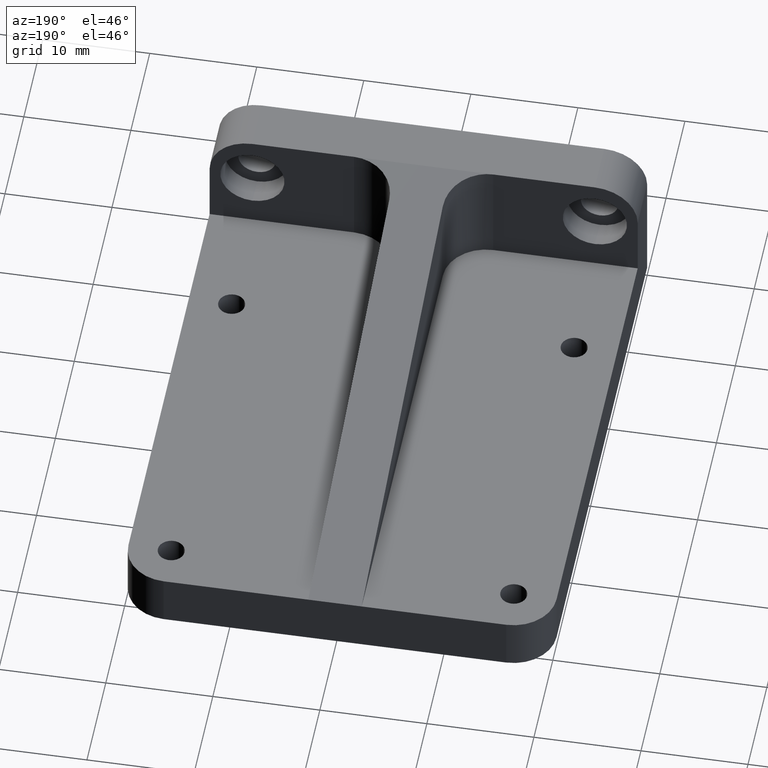
[diagram: clean part render]
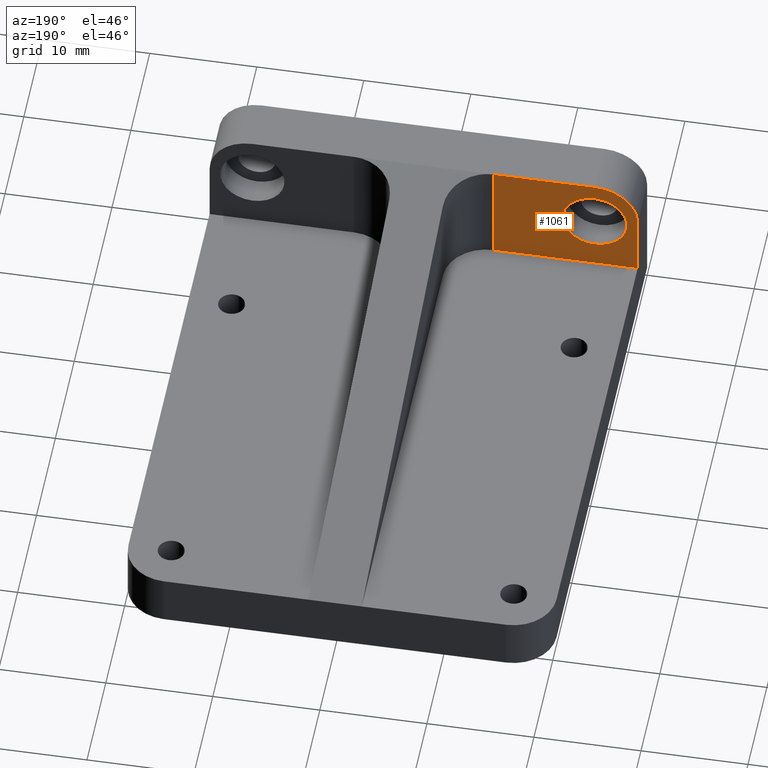
[diagram: same view with one face highlighted and labeled with its STEP entity id]
A machine part, auxiliary view. The second image highlights one B-rep face of the part: STEP entity #1061.
In plain terms, the highlighted planar face has unit normal (0, -1, 0).
Its self-contained STEP definition (entity closure, byte-faithful):
#9 = CARTESIAN_POINT ( 'NONE',  ( -16.00000000000000000, 5.000000000000000000, 13.50000000000000000 ) ) ;
#90 = ORIENTED_EDGE ( 'NONE', *, *, #994, .T. ) ;
#150 = DIRECTION ( 'NONE',  ( 0.0000000000000000000, 0.0000000000000000000, 1.000000000000000000 ) ) ;
#153 = VECTOR ( 'NONE', #934, 1000.000000000000000 ) ;
#166 = CARTESIAN_POINT ( 'NONE',  ( -20.00000000000000000, 4.999999999999998224, -50.15226814412284995 ) ) ;
#192 = CIRCLE ( 'NONE', #425, 2.999999999999999112 ) ;
#221 = VECTOR ( 'NONE', #1230, 1000.000000000000000 ) ;
#222 = ORIENTED_EDGE ( 'NONE', *, *, #502, .T. ) ;
#262 = VECTOR ( 'NONE', #756, 1000.000000000000000 ) ;
#312 = CARTESIAN_POINT ( 'NONE',  ( -20.00000000000000000, 4.999999999999998224, 10.99999999999999645 ) ) ;
#338 = EDGE_CURVE ( 'NONE', #1134, #678, #1071, .T. ) ;
#344 = LINE ( 'NONE', #166, #698 ) ;
#346 = CARTESIAN_POINT ( 'NONE',  ( -16.00000000000000000, 5.000000000000000000, 10.50000000000000000 ) ) ;
#352 = CARTESIAN_POINT ( 'NONE',  ( -6.499999999999995559, 4.999999999999998224, 15.00000000000000000 ) ) ;
#353 = EDGE_CURVE ( 'NONE', #883, #894, #376, .T. ) ;
#356 = CIRCLE ( 'NONE', #619, 4.000000000000000000 ) ;
#360 = CARTESIAN_POINT ( 'NONE',  ( -20.00000000000000000, 4.999999999999998224, 4.999999999999997335 ) ) ;
#376 = CIRCLE ( 'NONE', #530, 2.999999999999999112 ) ;
#381 = PLANE ( 'NONE',  #398 ) ;
#398 = AXIS2_PLACEMENT_3D ( 'NONE', #873, #1139, #1157 ) ;
#425 = AXIS2_PLACEMENT_3D ( 'NONE', #346, #608, #150 ) ;
#466 = FACE_BOUND ( 'NONE', #1242, .T. ) ;
#474 = CARTESIAN_POINT ( 'NONE',  ( -16.00000000000000000, 5.000000000000000000, 10.50000000000000000 ) ) ;
#476 = VERTEX_POINT ( 'NONE', #1028 ) ;
#479 = EDGE_CURVE ( 'NONE', #894, #883, #192, .T. ) ;
#487 = ORIENTED_EDGE ( 'NONE', *, *, #540, .T. ) ;
#502 = EDGE_CURVE ( 'NONE', #678, #476, #1213, .T. ) ;
#522 = CARTESIAN_POINT ( 'NONE',  ( -6.499999999999996447, 4.999999999999998224, 4.999999999999997335 ) ) ;
#530 = AXIS2_PLACEMENT_3D ( 'NONE', #474, #1078, #981 ) ;
#538 = CARTESIAN_POINT ( 'NONE',  ( -20.00000000000000000, 4.999999999999998224, 4.999999999999997335 ) ) ;
#540 = EDGE_CURVE ( 'NONE', #1169, #1134, #356, .T. ) ;
#551 = FACE_OUTER_BOUND ( 'NONE', #572, .T. ) ;
#572 = EDGE_LOOP ( 'NONE', ( #588, #487, #871, #222, #90 ) ) ;
#588 = ORIENTED_EDGE ( 'NONE', *, *, #726, .T. ) ;
#608 = DIRECTION ( 'NONE',  ( -0.0000000000000000000, 1.000000000000000000, -0.0000000000000000000 ) ) ;
#618 = DIRECTION ( 'NONE',  ( 0.0000000000000000000, 0.0000000000000000000, -1.000000000000000000 ) ) ;
#619 = AXIS2_PLACEMENT_3D ( 'NONE', #1116, #807, #618 ) ;
#623 = CARTESIAN_POINT ( 'NONE',  ( -16.00000000000000000, 5.000000000000000000, 7.500000000000001776 ) ) ;
#678 = VERTEX_POINT ( 'NONE', #352 ) ;
#698 = VECTOR ( 'NONE', #1115, 1000.000000000000000 ) ;
#726 = EDGE_CURVE ( 'NONE', #974, #1169, #344, .T. ) ;
#753 = ORIENTED_EDGE ( 'NONE', *, *, #353, .F. ) ;
#755 = CARTESIAN_POINT ( 'NONE',  ( -16.00000000000000355, 4.999999999999998224, 15.00000000000000000 ) ) ;
#756 = DIRECTION ( 'NONE',  ( 1.000000000000000000, 0.0000000000000000000, 0.0000000000000000000 ) ) ;
#807 = DIRECTION ( 'NONE',  ( -0.0000000000000000000, 1.000000000000000000, -0.0000000000000000000 ) ) ;
#871 = ORIENTED_EDGE ( 'NONE', *, *, #338, .T. ) ;
#873 = CARTESIAN_POINT ( 'NONE',  ( -20.00000000000000000, 4.999999999999998224, -50.15226814412284995 ) ) ;
#883 = VERTEX_POINT ( 'NONE', #9 ) ;
#894 = VERTEX_POINT ( 'NONE', #623 ) ;
#927 = LINE ( 'NONE', #360, #221 ) ;
#934 = DIRECTION ( 'NONE',  ( -0.0000000000000000000, -0.0000000000000000000, -1.000000000000000000 ) ) ;
#974 = VERTEX_POINT ( 'NONE', #538 ) ;
#981 = DIRECTION ( 'NONE',  ( 0.0000000000000000000, 0.0000000000000000000, 1.000000000000000000 ) ) ;
#994 = EDGE_CURVE ( 'NONE', #476, #974, #927, .T. ) ;
#1028 = CARTESIAN_POINT ( 'NONE',  ( -6.499999999999995559, 4.999999999999998224, 4.999999999999997335 ) ) ;
#1061 = ADVANCED_FACE ( 'NONE', ( #551, #466 ), #381, .F. ) ;
#1064 = CARTESIAN_POINT ( 'NONE',  ( -20.00000000000000000, 4.999999999999998224, 15.00000000000000000 ) ) ;
#1071 = LINE ( 'NONE', #1064, #262 ) ;
#1078 = DIRECTION ( 'NONE',  ( -0.0000000000000000000, 1.000000000000000000, -0.0000000000000000000 ) ) ;
#1115 = DIRECTION ( 'NONE',  ( -0.0000000000000000000, -0.0000000000000000000, 1.000000000000000000 ) ) ;
#1116 = CARTESIAN_POINT ( 'NONE',  ( -16.00000000000000355, 4.999999999999998224, 11.00000000000000000 ) ) ;
#1134 = VERTEX_POINT ( 'NONE', #755 ) ;
#1139 = DIRECTION ( 'NONE',  ( 0.0000000000000000000, -1.000000000000000000, 0.0000000000000000000 ) ) ;
#1157 = DIRECTION ( 'NONE',  ( 0.0000000000000000000, -0.0000000000000000000, -1.000000000000000000 ) ) ;
#1169 = VERTEX_POINT ( 'NONE', #312 ) ;
#1184 = ORIENTED_EDGE ( 'NONE', *, *, #479, .F. ) ;
#1213 = LINE ( 'NONE', #522, #153 ) ;
#1230 = DIRECTION ( 'NONE',  ( -1.000000000000000000, 0.0000000000000000000, 0.0000000000000000000 ) ) ;
#1242 = EDGE_LOOP ( 'NONE', ( #753, #1184 ) ) ;